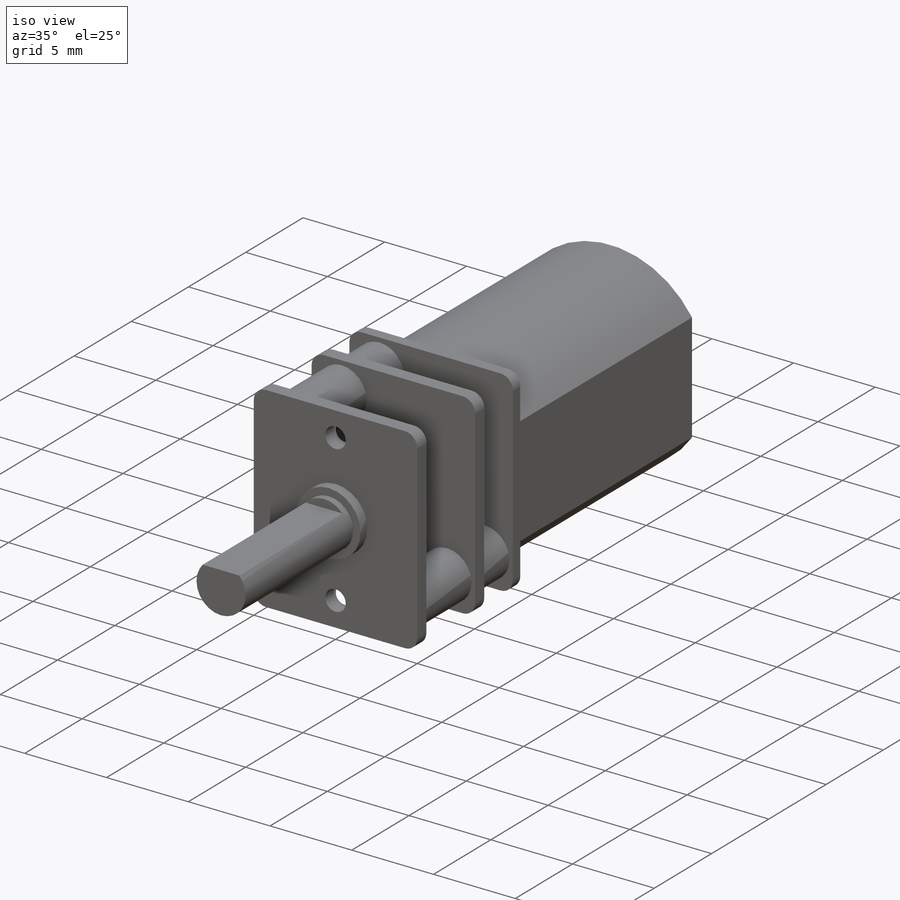
[diagram: iso view]
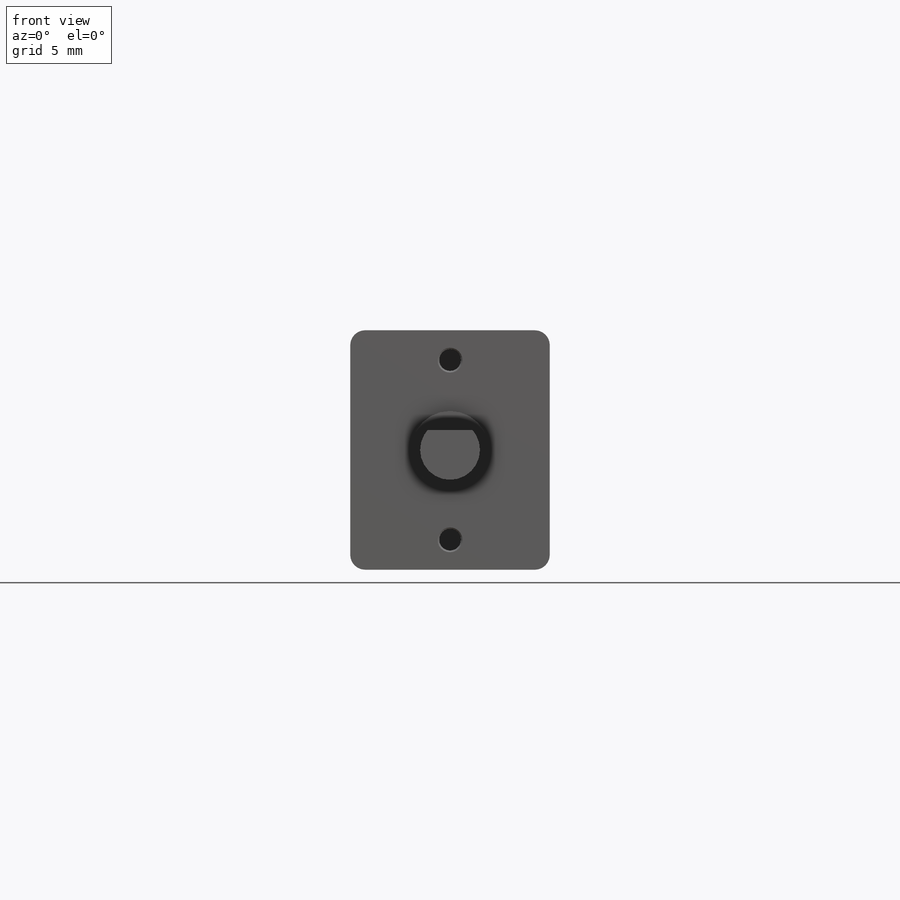
[diagram: front view]
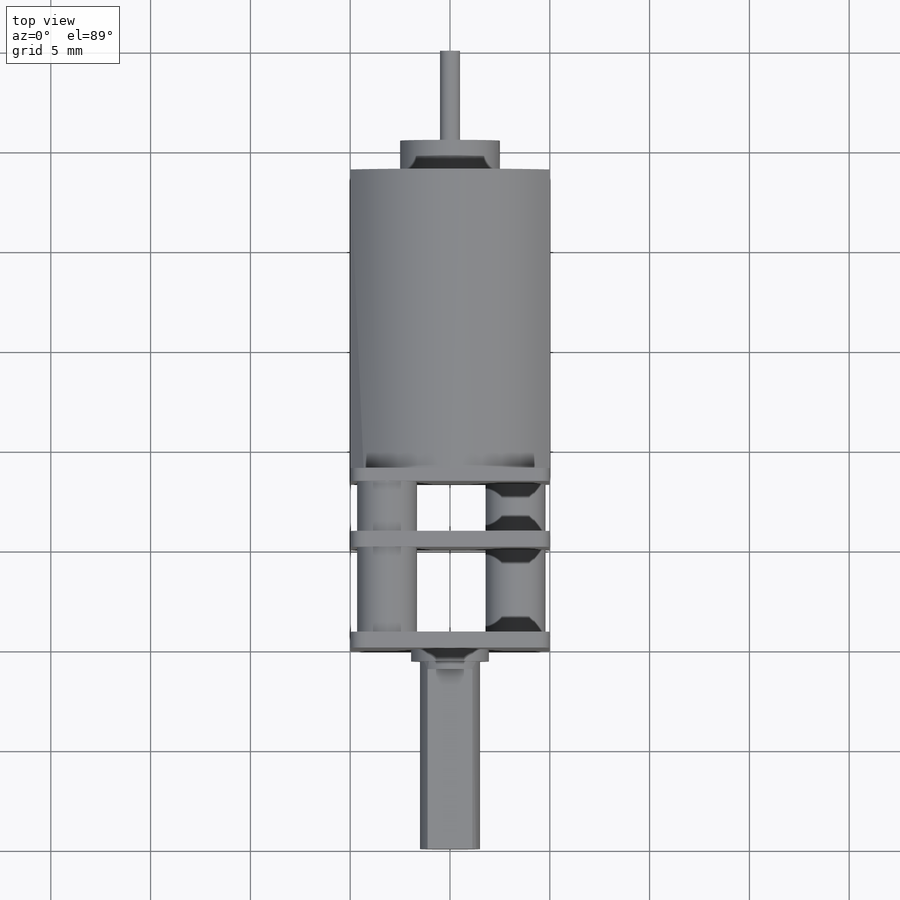
[diagram: top view]
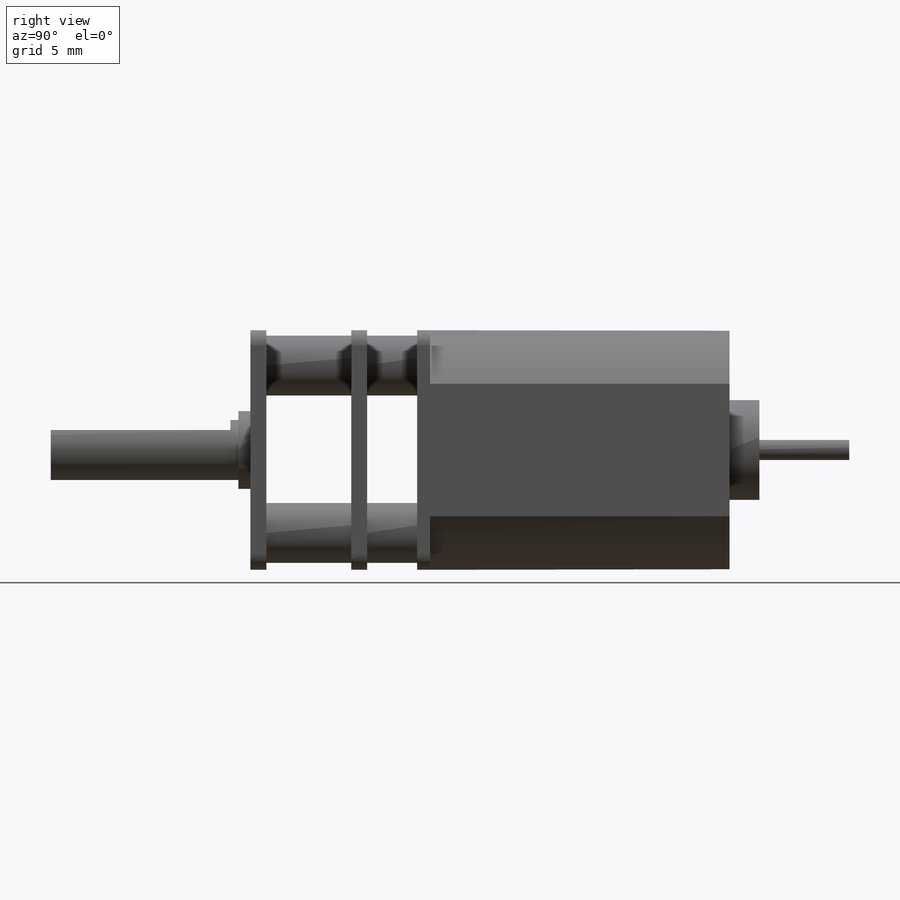
[diagram: right view]
SOLIDWORKS PART (.sldprt)
format: sldprt  version: not decoded by parser v0  size: 352,768 bytes
history: native  units: mm
features: sketch x8, cut_extrude x3, extrude x2, thread x2, material x1, revolve x1, fillet x1, hole x1 (+13 scaffold rows collapsed)
feature tree (32):
  scaffold x13  (default folders/planes/origin — collapsed)
  material  "Material <not specified>"
  sketch  "Sketch1"  dims[D1=12.0mm D2=10.0mm]
  extrude  "Boss-Extrude1"  Depth=9mm
  sketch  "Sketch2"  dims[D2=6.0mm D1=10.0mm]
  extrude  "Boss-Extrude2"  Depth=15mm
  sketch  "Sketch3"  dims[D1=1.95mm D2=1.5mm D3=0.6mm D4=2.5mm D5=1.5mm D6=0.5mm D7=40.0mm D8=10.0mm]
  revolve  "Revolve1"  Angle=360deg
  sketch  "Sketch4"  dims[D1=1.0mm]
  cut_extrude  "Cut-Extrude1"  Depth=9mm
  fillet  "Fillet1"  Radius=0.75mm
  hole  "M1.6x0.35 Tapped Hole1"  Diameter=1.25mm Depth=0.75mm
  sketch  "Sketch6"  dims[D1=9.0mm]
  sketch  "Sketch5"  dims[hole-wizard template sketch: 46 standard entries collapsed; hole parameters kept: c15.Tap Drill Dia.=1.25mm c15.Tap Drill Depth=0.75mm c15.D3=~14.816244mm c15.Drill Angle=118.0deg]
  thread  "Hole Thread1"  Diameter=0.75mm  [1 undecoded]
  thread  "Hole Thread2"  Diameter=0.75mm  [1 undecoded]
  sketch  "Sketch7"  dims[D1=3.0mm]
  cut_extrude  "Cut-Extrude2"  Depth=4.25mm
  sketch  "Sketch8"
  cut_extrude  "Cut-Extrude3"  Depth=2.5mm
decode coverage: 17 of 18 modeling features carry decoded parameters
note: ~ marks probable driven/reference dimensions
note: 2 parameter values undecoded
note: suppression state not decoded; provenance and decode notes live in map.json
